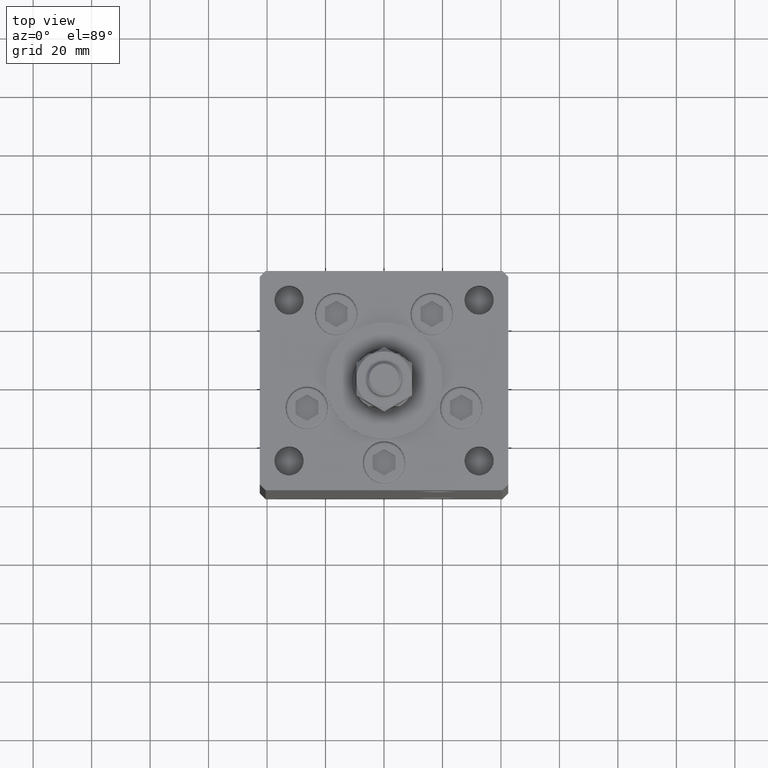
[diagram: clean part render]
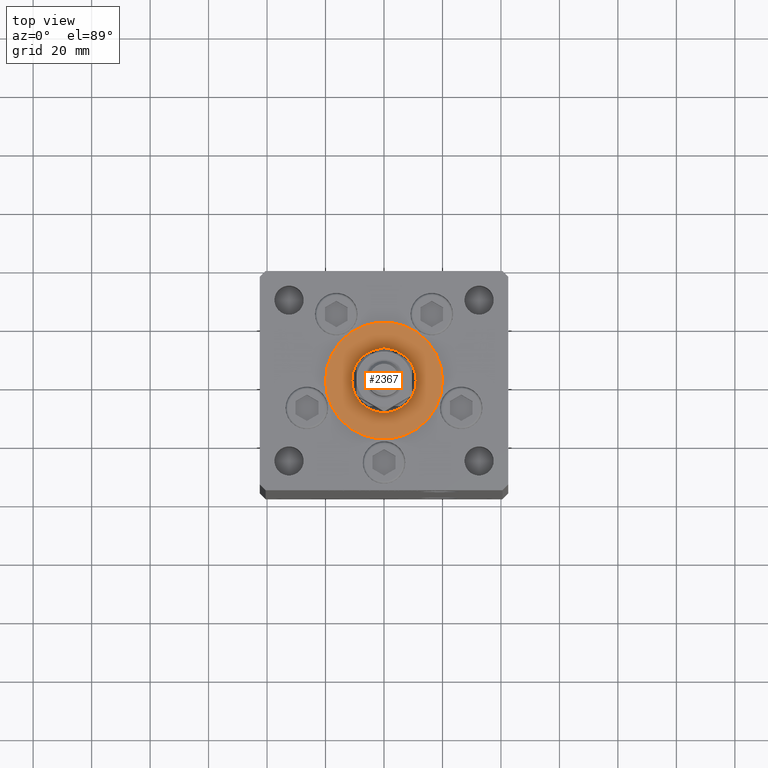
[diagram: same view with one face highlighted and labeled with its STEP entity id]
A machine part, top view. The second image highlights one B-rep face of the part: STEP entity #2367.
In plain terms, the highlighted planar face has unit normal (0, 0, 1).
Its self-contained STEP definition (entity closure, byte-faithful):
#950 = DIRECTION ( 'NONE',  ( 0.000000000000000000, 0.000000000000000000, 1.000000000000000000 ) ) ;
#986 = VERTEX_POINT ( 'NONE', #38762 ) ;
#1088 = EDGE_CURVE ( 'NONE', #34900, #30224, #23566, .T. ) ;
#1486 = CARTESIAN_POINT ( 'NONE',  ( 0.000000000000000000, -6.938893903907228378E-15, 2.000000000000000000 ) ) ;
#1749 = DIRECTION ( 'NONE',  ( 1.000000000000000000, 0.000000000000000000, 0.000000000000000000 ) ) ;
#2352 = AXIS2_PLACEMENT_3D ( 'NONE', #19847, #32364, #29359 ) ;
#2367 = ADVANCED_FACE ( 'NONE', ( #3222, #7295 ), #29033, .T. ) ;
#2930 = AXIS2_PLACEMENT_3D ( 'NONE', #1486, #950, #1749 ) ;
#3222 = FACE_BOUND ( 'NONE', #36468, .T. ) ;
#4027 = CARTESIAN_POINT ( 'NONE',  ( 0.000000000000000000, -6.938893903907228378E-15, 2.000000000000000000 ) ) ;
#6665 = DIRECTION ( 'NONE',  ( 0.000000000000000000, 0.000000000000000000, 1.000000000000000000 ) ) ;
#7295 = FACE_OUTER_BOUND ( 'NONE', #13910, .T. ) ;
#8941 = VERTEX_POINT ( 'NONE', #41044 ) ;
#13910 = EDGE_LOOP ( 'NONE', ( #29488, #32008 ) ) ;
#16117 = CIRCLE ( 'NONE', #46534, 11.00000000000000000 ) ;
#18884 = CARTESIAN_POINT ( 'NONE',  ( 0.000000000000000000, -6.938893903907228378E-15, 2.000000000000000000 ) ) ;
#19847 = CARTESIAN_POINT ( 'NONE',  ( 0.000000000000000000, -6.938893903907228378E-15, 2.000000000000000000 ) ) ;
#21326 = DIRECTION ( 'NONE',  ( 0.000000000000000000, 0.000000000000000000, 1.000000000000000000 ) ) ;
#22138 = CARTESIAN_POINT ( 'NONE',  ( 11.00000000000000000, -6.938893903907228378E-15, 2.000000000000000000 ) ) ;
#23566 = CIRCLE ( 'NONE', #26214, 11.00000000000000000 ) ;
#24938 = DIRECTION ( 'NONE',  ( 1.000000000000000000, 0.000000000000000000, -0.000000000000000000 ) ) ;
#25317 = AXIS2_PLACEMENT_3D ( 'NONE', #4027, #44823, #24938 ) ;
#26214 = AXIS2_PLACEMENT_3D ( 'NONE', #18884, #6665, #53681 ) ;
#28392 = CIRCLE ( 'NONE', #2352, 20.00000000000000000 ) ;
#29033 = PLANE ( 'NONE',  #25317 ) ;
#29359 = DIRECTION ( 'NONE',  ( 1.000000000000000000, 0.000000000000000000, 0.000000000000000000 ) ) ;
#29488 = ORIENTED_EDGE ( 'NONE', *, *, #44162, .T. ) ;
#30129 = EDGE_CURVE ( 'NONE', #986, #8941, #52433, .T. ) ;
#30224 = VERTEX_POINT ( 'NONE', #22138 ) ;
#32008 = ORIENTED_EDGE ( 'NONE', *, *, #30129, .T. ) ;
#32364 = DIRECTION ( 'NONE',  ( 0.000000000000000000, 0.000000000000000000, 1.000000000000000000 ) ) ;
#33902 = ORIENTED_EDGE ( 'NONE', *, *, #1088, .F. ) ;
#34900 = VERTEX_POINT ( 'NONE', #40206 ) ;
#36468 = EDGE_LOOP ( 'NONE', ( #37119, #33902 ) ) ;
#37119 = ORIENTED_EDGE ( 'NONE', *, *, #41493, .F. ) ;
#38762 = CARTESIAN_POINT ( 'NONE',  ( 20.00000000000000000, -4.489600305612522259E-15, 2.000000000000000000 ) ) ;
#40206 = CARTESIAN_POINT ( 'NONE',  ( -11.00000000000000000, -5.591782424845139381E-15, 2.000000000000000000 ) ) ;
#41044 = CARTESIAN_POINT ( 'NONE',  ( -20.00000000000000000, -6.938893903907228378E-15, 2.000000000000000000 ) ) ;
#41493 = EDGE_CURVE ( 'NONE', #30224, #34900, #16117, .T. ) ;
#44162 = EDGE_CURVE ( 'NONE', #8941, #986, #28392, .T. ) ;
#44823 = DIRECTION ( 'NONE',  ( 0.000000000000000000, 0.000000000000000000, 1.000000000000000000 ) ) ;
#46081 = CARTESIAN_POINT ( 'NONE',  ( 0.000000000000000000, -6.938893903907228378E-15, 2.000000000000000000 ) ) ;
#46359 = DIRECTION ( 'NONE',  ( 1.000000000000000000, 0.000000000000000000, 0.000000000000000000 ) ) ;
#46534 = AXIS2_PLACEMENT_3D ( 'NONE', #46081, #21326, #46359 ) ;
#52433 = CIRCLE ( 'NONE', #2930, 20.00000000000000000 ) ;
#53681 = DIRECTION ( 'NONE',  ( 1.000000000000000000, 0.000000000000000000, 0.000000000000000000 ) ) ;